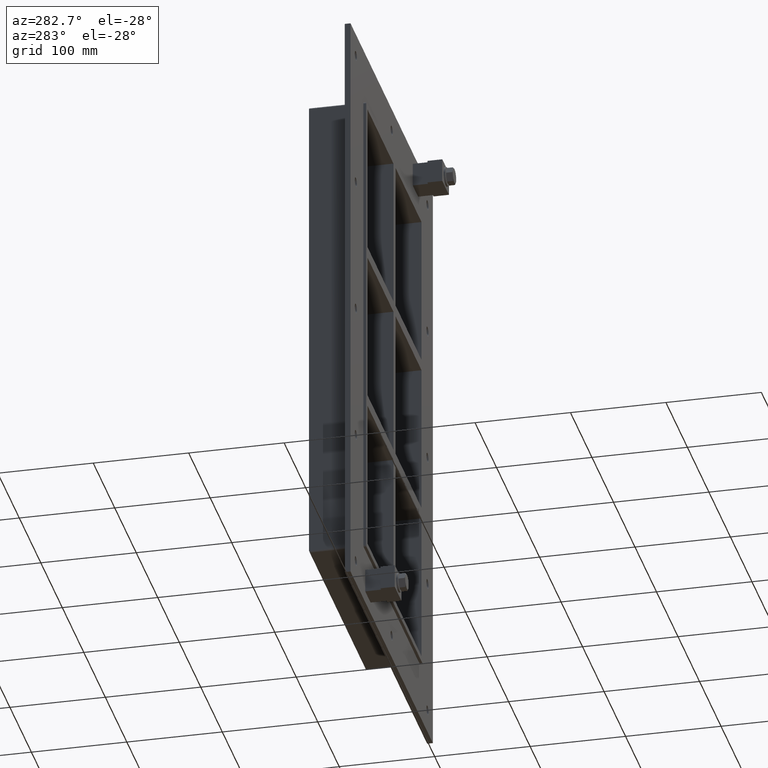
[diagram: clean part render]
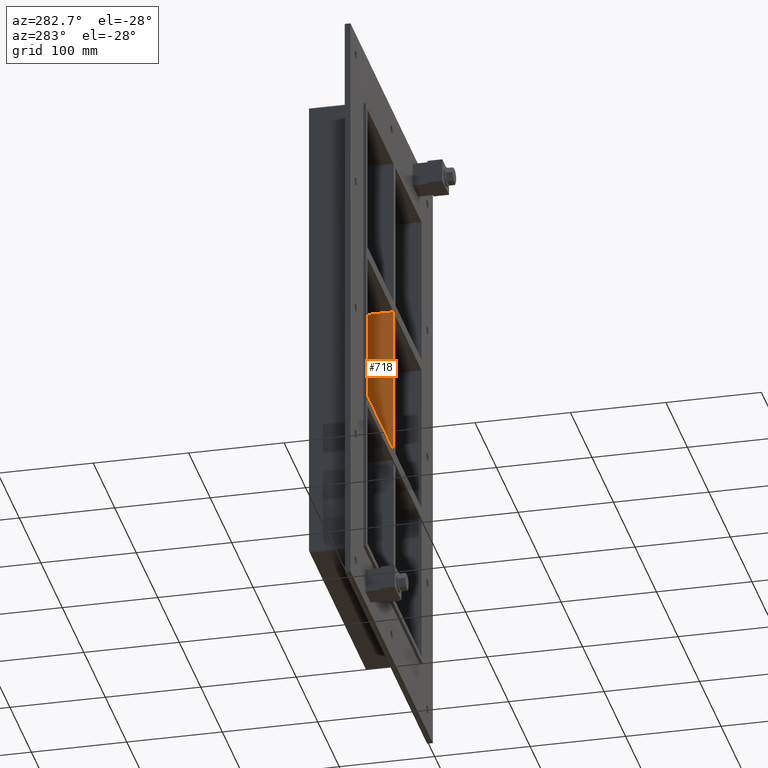
[diagram: same view with one face highlighted and labeled with its STEP entity id]
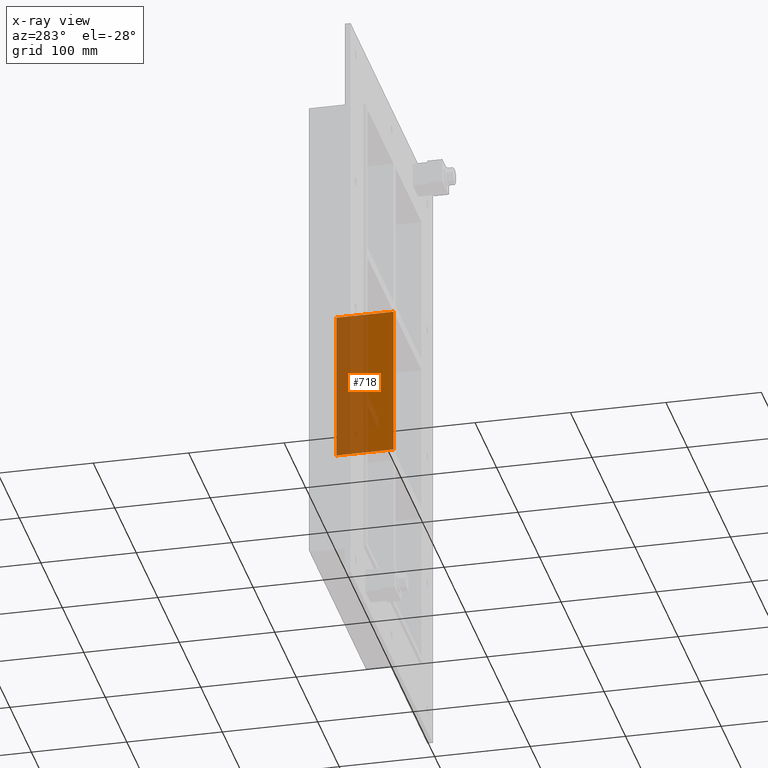
[diagram: x-ray of the same camera — body ghosted, the highlighted face saturated]
A machine part, auxiliary view. The second image highlights one B-rep face of the part: STEP entity #718.
The next image is the same camera in x-ray: the body ghosted, the highlighted face saturated — about 57% of this face is hidden behind the body in this view.
In plain terms, the highlighted planar face has unit normal (-1, 0, 0).
Its self-contained STEP definition (entity closure, byte-faithful):
#529=CARTESIAN_POINT('',(-5.000000000000391,-3.0,79.749999999989114));
#530=VERTEX_POINT('',#529);
#531=CARTESIAN_POINT('',(-5.000000000000396,57.0,79.749999999989143));
#532=VERTEX_POINT('',#531);
#533=CARTESIAN_POINT('',(-5.0000000000004,-3.0,79.749999999989129));
#534=DIRECTION('',(0.0,1.0,0.0));
#535=VECTOR('',#534,60.0);
#536=LINE('',#533,#535);
#537=EDGE_CURVE('',#530,#532,#536,.T.);
#688=CARTESIAN_POINT('',(-5.000000000000338,-3.0,-251.25));
#689=DIRECTION('',(-1.0,0.0,0.0));
#690=DIRECTION('',(0.0,0.0,1.0));
#691=AXIS2_PLACEMENT_3D('',#688,#689,#690);
#692=PLANE('',#691);
#693=ORIENTED_EDGE('',*,*,#537,.T.);
#694=CARTESIAN_POINT('',(-5.000000000000373,57.0,-79.750000000000227));
#695=VERTEX_POINT('',#694);
#696=CARTESIAN_POINT('',(-5.000000000000368,57.0,-79.750000000000227));
#697=DIRECTION('',(0.0,0.0,1.0));
#698=VECTOR('',#697,159.49999999998937);
#699=LINE('',#696,#698);
#700=EDGE_CURVE('',#695,#532,#699,.T.);
#701=ORIENTED_EDGE('',*,*,#700,.F.);
#702=CARTESIAN_POINT('',(-5.000000000000373,-3.0,-79.750000000000227));
#703=VERTEX_POINT('',#702);
#704=CARTESIAN_POINT('',(-5.000000000000364,57.0,-79.750000000000227));
#705=DIRECTION('',(0.0,-1.0,0.0));
#706=VECTOR('',#705,60.0);
#707=LINE('',#704,#706);
#708=EDGE_CURVE('',#695,#703,#707,.T.);
#709=ORIENTED_EDGE('',*,*,#708,.T.);
#710=CARTESIAN_POINT('',(-5.000000000000368,-3.0,-79.750000000000227));
#711=DIRECTION('',(0.0,0.0,1.0));
#712=VECTOR('',#711,159.49999999998937);
#713=LINE('',#710,#712);
#714=EDGE_CURVE('',#703,#530,#713,.T.);
#715=ORIENTED_EDGE('',*,*,#714,.T.);
#716=EDGE_LOOP('',(#693,#701,#709,#715));
#717=FACE_OUTER_BOUND('',#716,.T.);
#718=ADVANCED_FACE('',(#717),#692,.T.);